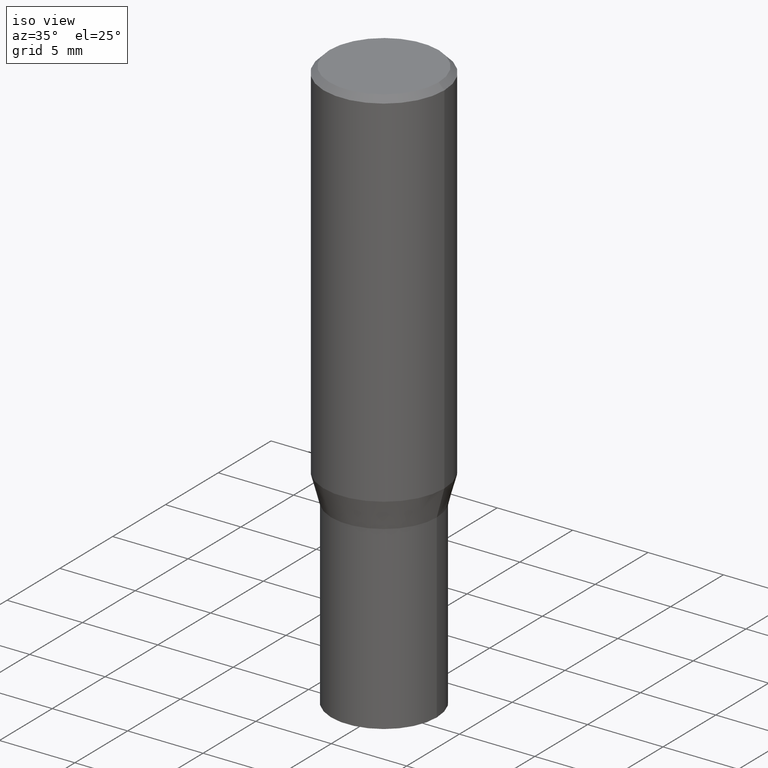
[diagram: clean part render]
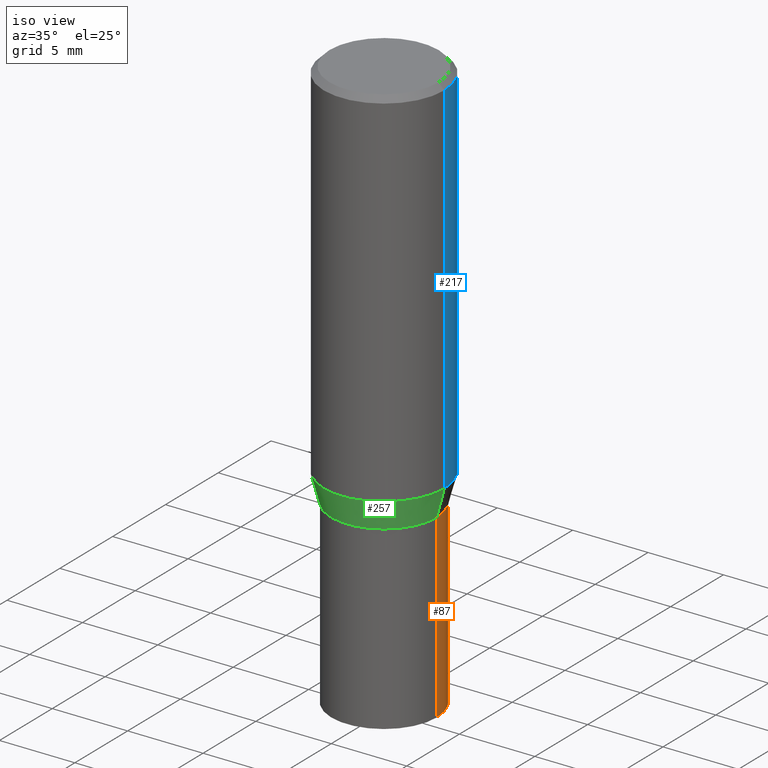
[diagram: same view with three faces highlighted in distinct colors, each labeled with its STEP entity id]
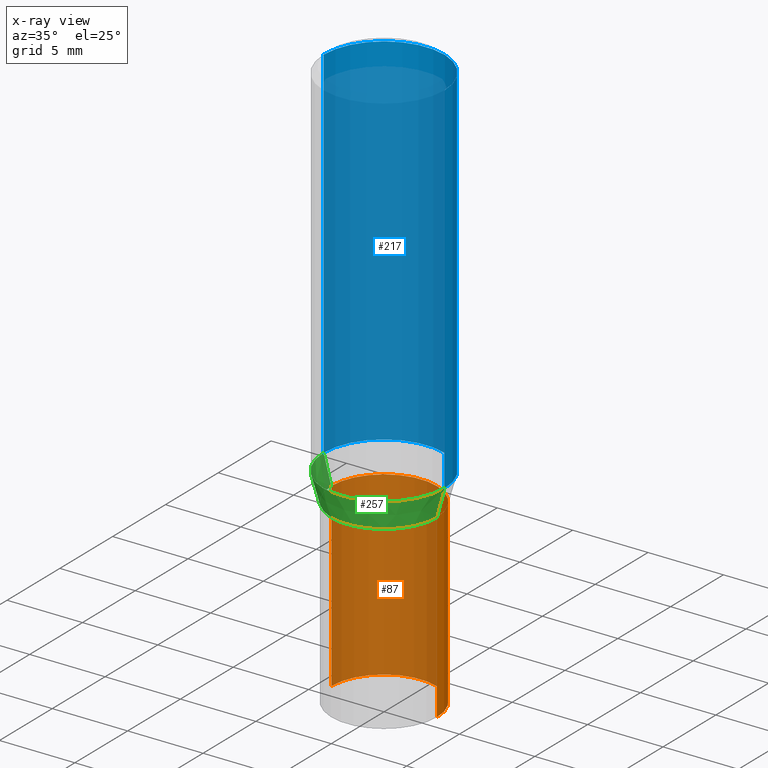
[diagram: x-ray of the same camera — body ghosted, the three highlighted faces saturated]
A machine part, iso view with three faces highlighted in distinct colors.
The next image is the same camera in x-ray (body ghosted, the three faces saturated) — at least one of them is partly hidden behind the body in this view.
Their STEP definitions:

[orange] entity #87 — the highlighted cylindrical surface (partial cylindrical patch) has radius 3.5001 mm, axis along (-0, 0, 1).
#26 = EDGE_CURVE ( 'NONE', #440, #168, #345, .T. ) ;
#33 = CARTESIAN_POINT ( 'NONE',  ( 0.000000000000000000, 0.000000000000000000, 0.000000000000000000 ) ) ;
#44 = LINE ( 'NONE', #121, #336 ) ;
#63 = AXIS2_PLACEMENT_3D ( 'NONE', #33, #355, #459 ) ;
#81 = DIRECTION ( 'NONE',  ( 1.000000000000000000, -6.982962677686265922E-15, 0.000000000000000000 ) ) ;
#87 = ADVANCED_FACE ( 'NONE', ( #166 ), #394, .T. ) ;
#88 = DIRECTION ( 'NONE',  ( -2.445468806185136597E-29, 3.491481338843145583E-15, 1.000000000000000000 ) ) ;
#116 = CARTESIAN_POINT ( 'NONE',  ( 0.1378000000000000058, -6.199474265249886443E-15, -1.500000000000000222 ) ) ;
#118 = AXIS2_PLACEMENT_3D ( 'NONE', #302, #120, #431 ) ;
#120 = DIRECTION ( 'NONE',  ( -2.445468806185136597E-29, 3.491481338843145583E-15, 1.000000000000000000 ) ) ;
#121 = CARTESIAN_POINT ( 'NONE',  ( -0.1378000000000000058, 9.791278898774180975E-16, -6.778292554371260034E-30 ) ) ;
#139 = ORIENTED_EDGE ( 'NONE', *, *, #432, .T. ) ;
#166 = FACE_OUTER_BOUND ( 'NONE', #420, .T. ) ;
#168 = VERTEX_POINT ( 'NONE', #285 ) ;
#188 = CIRCLE ( 'NONE', #260, 0.1378000000000000058 ) ;
#192 = CARTESIAN_POINT ( 'NONE',  ( 0.1378000000000000058, -9.622522569851676742E-16, 6.719371597046799937E-30 ) ) ;
#236 = VERTEX_POINT ( 'NONE', #395 ) ;
#260 = AXIS2_PLACEMENT_3D ( 'NONE', #304, #88, #81 ) ;
#277 = ORIENTED_EDGE ( 'NONE', *, *, #453, .F. ) ;
#285 = CARTESIAN_POINT ( 'NONE',  ( 0.1378000000000000058, -4.550098480780384395E-15, -1.027600000000000069 ) ) ;
#302 = CARTESIAN_POINT ( 'NONE',  ( 3.668203209277704895E-29, -5.237222008264718177E-15, -1.500000000000000222 ) ) ;
#304 = CARTESIAN_POINT ( 'NONE',  ( 2.512963745235846570E-29, -3.587846223795216918E-15, -1.027600000000000069 ) ) ;
#336 = VECTOR ( 'NONE', #427, 39.37007874015748143 ) ;
#341 = DIRECTION ( 'NONE',  ( -2.445468806185136877E-29, 3.491481338843145188E-15, 1.000000000000000000 ) ) ;
#345 = LINE ( 'NONE', #192, #433 ) ;
#355 = DIRECTION ( 'NONE',  ( -2.445468806185136597E-29, 3.491481338843145583E-15, 1.000000000000000000 ) ) ;
#390 = ORIENTED_EDGE ( 'NONE', *, *, #26, .F. ) ;
#394 = CYLINDRICAL_SURFACE ( 'NONE', #63, 0.1378000000000000058 ) ;
#395 = CARTESIAN_POINT ( 'NONE',  ( -0.1378000000000000058, -3.433406226152549647E-15, -1.500000000000000222 ) ) ;
#399 = CARTESIAN_POINT ( 'NONE',  ( -0.1378000000000000058, -3.433406226152549647E-15, -1.027600000000000069 ) ) ;
#411 = CIRCLE ( 'NONE', #118, 0.1378000000000000058 ) ;
#416 = ORIENTED_EDGE ( 'NONE', *, *, #428, .T. ) ;
#420 = EDGE_LOOP ( 'NONE', ( #416, #139, #277, #390 ) ) ;
#427 = DIRECTION ( 'NONE',  ( -2.445468806185136877E-29, 3.491481338843145188E-15, 1.000000000000000000 ) ) ;
#428 = EDGE_CURVE ( 'NONE', #440, #236, #411, .T. ) ;
#431 = DIRECTION ( 'NONE',  ( 1.000000000000000000, -6.982962677686265922E-15, 0.000000000000000000 ) ) ;
#432 = EDGE_CURVE ( 'NONE', #236, #452, #44, .T. ) ;
#433 = VECTOR ( 'NONE', #341, 39.37007874015748143 ) ;
#440 = VERTEX_POINT ( 'NONE', #116 ) ;
#452 = VERTEX_POINT ( 'NONE', #399 ) ;
#453 = EDGE_CURVE ( 'NONE', #168, #452, #188, .T. ) ;
#459 = DIRECTION ( 'NONE',  ( 1.000000000000000000, -6.982962677686267499E-15, 4.876176775795935793E-29 ) ) ;

[blue] entity #217 — the highlighted cylindrical surface (partial cylindrical patch) has radius 4.0005 mm, axis along (-0, 0, 1).
#4 = AXIS2_PLACEMENT_3D ( 'NONE', #426, #77, #327 ) ;
#5 = DIRECTION ( 'NONE',  ( -2.445468806185136877E-29, 3.491481338843145188E-15, 1.000000000000000000 ) ) ;
#25 = DIRECTION ( 'NONE',  ( -2.445468806185136597E-29, 3.491481338843145583E-15, 1.000000000000000000 ) ) ;
#37 = CARTESIAN_POINT ( 'NONE',  ( 2.334147640248070557E-29, -3.332544217051005165E-15, -0.9544785990908941642 ) ) ;
#47 = EDGE_CURVE ( 'NONE', #94, #200, #167, .T. ) ;
#54 = VECTOR ( 'NONE', #5, 39.37007874015748143 ) ;
#67 = ORIENTED_EDGE ( 'NONE', *, *, #248, .T. ) ;
#74 = CARTESIAN_POINT ( 'NONE',  ( 0.1575000000000000011, -4.432360838786593040E-15, -0.9544785990908941642 ) ) ;
#76 = DIRECTION ( 'NONE',  ( 1.000000000000000000, -6.982962677686265922E-15, 0.000000000000000000 ) ) ;
#77 = DIRECTION ( 'NONE',  ( -2.445468806185136597E-29, 3.491481338843145583E-15, 1.000000000000000000 ) ) ;
#85 = CARTESIAN_POINT ( 'NONE',  ( -0.1575000000000000011, -2.213439408228846773E-15, -0.9544785990908941642 ) ) ;
#94 = VERTEX_POINT ( 'NONE', #85 ) ;
#101 = VERTEX_POINT ( 'NONE', #296 ) ;
#112 = DIRECTION ( 'NONE',  ( -2.445468806185136597E-29, 3.491481338843145583E-15, 1.000000000000000000 ) ) ;
#167 = LINE ( 'NONE', #263, #54 ) ;
#186 = CARTESIAN_POINT ( 'NONE',  ( 0.1575000000000000011, -1.099816621735586889E-15, 7.679978421878598033E-30 ) ) ;
#187 = VECTOR ( 'NONE', #270, 39.37007874015748143 ) ;
#193 = CIRCLE ( 'NONE', #205, 0.1575000000000000011 ) ;
#200 = VERTEX_POINT ( 'NONE', #326 ) ;
#204 = VERTEX_POINT ( 'NONE', #74 ) ;
#205 = AXIS2_PLACEMENT_3D ( 'NONE', #462, #112, #76 ) ;
#217 = ADVANCED_FACE ( 'NONE', ( #354 ), #295, .T. ) ;
#223 = EDGE_CURVE ( 'NONE', #101, #200, #193, .T. ) ;
#248 = EDGE_CURVE ( 'NONE', #204, #94, #250, .T. ) ;
#250 = CIRCLE ( 'NONE', #463, 0.1575000000000000011 ) ;
#262 = EDGE_CURVE ( 'NONE', #204, #101, #266, .T. ) ;
#263 = CARTESIAN_POINT ( 'NONE',  ( -0.1575000000000000011, 1.119104808822157801E-15, -7.747322767151475583E-30 ) ) ;
#266 = LINE ( 'NONE', #186, #187 ) ;
#270 = DIRECTION ( 'NONE',  ( -2.445468806185136877E-29, 3.491481338843145188E-15, 1.000000000000000000 ) ) ;
#295 = CYLINDRICAL_SURFACE ( 'NONE', #4, 0.1575000000000000011 ) ;
#296 = CARTESIAN_POINT ( 'NONE',  ( 0.1575000000000000011, -1.152188841818234165E-15, -0.01499999999999999944 ) ) ;
#326 = CARTESIAN_POINT ( 'NONE',  ( -0.1575000000000000011, -5.733534097446686172E-16, -0.01499999999999999944 ) ) ;
#327 = DIRECTION ( 'NONE',  ( 1.000000000000000000, -6.982962677686265922E-15, 4.876176775795935232E-29 ) ) ;
#331 = DIRECTION ( 'NONE',  ( 1.000000000000000000, -6.982962677686264344E-15, 0.000000000000000000 ) ) ;
#342 = ORIENTED_EDGE ( 'NONE', *, *, #262, .F. ) ;
#352 = ORIENTED_EDGE ( 'NONE', *, *, #47, .T. ) ;
#354 = FACE_OUTER_BOUND ( 'NONE', #376, .T. ) ;
#376 = EDGE_LOOP ( 'NONE', ( #67, #352, #465, #342 ) ) ;
#426 = CARTESIAN_POINT ( 'NONE',  ( 0.000000000000000000, 0.000000000000000000, 0.000000000000000000 ) ) ;
#462 = CARTESIAN_POINT ( 'NONE',  ( 3.668203209277705088E-31, -5.237222008264718399E-17, -0.01499999999999999944 ) ) ;
#463 = AXIS2_PLACEMENT_3D ( 'NONE', #37, #25, #331 ) ;
#465 = ORIENTED_EDGE ( 'NONE', *, *, #223, .F. ) ;

[green] entity #257 — the highlighted conical surface has half-angle 15 deg.
#28 = CIRCLE ( 'NONE', #146, 0.1575000000000000011 ) ;
#48 = DIRECTION ( 'NONE',  ( 1.000000000000000000, -6.982962677686270655E-15, 0.000000000000000000 ) ) ;
#74 = CARTESIAN_POINT ( 'NONE',  ( 0.1575000000000000011, -4.432360838786593040E-15, -0.9544785990908941642 ) ) ;
#85 = CARTESIAN_POINT ( 'NONE',  ( -0.1575000000000000011, -2.213439408228846773E-15, -0.9544785990908941642 ) ) ;
#94 = VERTEX_POINT ( 'NONE', #85 ) ;
#113 = ORIENTED_EDGE ( 'NONE', *, *, #131, .T. ) ;
#114 = CARTESIAN_POINT ( 'NONE',  ( 2.513941932758320587E-29, -3.589242816330753332E-15, -1.028000000000000025 ) ) ;
#123 = AXIS2_PLACEMENT_3D ( 'NONE', #337, #430, #48 ) ;
#131 = EDGE_CURVE ( 'NONE', #449, #454, #403, .T. ) ;
#137 = CONICAL_SURFACE ( 'NONE', #123, 0.1378000000000002001, 0.2617993877991500740 ) ;
#141 = EDGE_CURVE ( 'NONE', #454, #204, #425, .T. ) ;
#143 = ORIENTED_EDGE ( 'NONE', *, *, #214, .F. ) ;
#146 = AXIS2_PLACEMENT_3D ( 'NONE', #361, #359, #215 ) ;
#148 = DIRECTION ( 'NONE',  ( -0.2588190451025213501, 5.211531920934551042E-15, 0.9659258262890682012 ) ) ;
#170 = EDGE_CURVE ( 'NONE', #449, #94, #213, .T. ) ;
#190 = CARTESIAN_POINT ( 'NONE',  ( -0.1378000000000002001, -2.411777167341090313E-15, -1.028000000000000025 ) ) ;
#204 = VERTEX_POINT ( 'NONE', #74 ) ;
#213 = LINE ( 'NONE', #358, #291 ) ;
#214 = EDGE_CURVE ( 'NONE', #94, #204, #28, .T. ) ;
#215 = DIRECTION ( 'NONE',  ( 1.000000000000000000, -6.982962677686264344E-15, 0.000000000000000000 ) ) ;
#219 = AXIS2_PLACEMENT_3D ( 'NONE', #114, #293, #396 ) ;
#249 = CARTESIAN_POINT ( 'NONE',  ( 0.1378000000000002001, -4.551495073315923176E-15, -1.028000000000000025 ) ) ;
#257 = ADVANCED_FACE ( 'NONE', ( #455 ), #137, .T. ) ;
#287 = ORIENTED_EDGE ( 'NONE', *, *, #141, .T. ) ;
#291 = VECTOR ( 'NONE', #148, 39.37007874015747433 ) ;
#293 = DIRECTION ( 'NONE',  ( -2.445468806185136597E-29, 3.491481338843145583E-15, 1.000000000000000000 ) ) ;
#298 = CARTESIAN_POINT ( 'NONE',  ( 0.1378000000000002001, -4.551495073315923176E-15, -1.028000000000000025 ) ) ;
#337 = CARTESIAN_POINT ( 'NONE',  ( 2.513941932758320587E-29, -3.589242816330753332E-15, -1.028000000000000025 ) ) ;
#358 = CARTESIAN_POINT ( 'NONE',  ( -0.1378000000000002001, -2.610114926453333854E-15, -1.028000000000000025 ) ) ;
#359 = DIRECTION ( 'NONE',  ( -2.445468806185136597E-29, 3.491481338843145583E-15, 1.000000000000000000 ) ) ;
#361 = CARTESIAN_POINT ( 'NONE',  ( 2.334147640248070557E-29, -3.332544217051005165E-15, -0.9544785990908941642 ) ) ;
#388 = EDGE_LOOP ( 'NONE', ( #457, #113, #287, #143 ) ) ;
#396 = DIRECTION ( 'NONE',  ( 1.000000000000000000, -6.982962677686270655E-15, 0.000000000000000000 ) ) ;
#403 = CIRCLE ( 'NONE', #219, 0.1378000000000002001 ) ;
#409 = VECTOR ( 'NONE', #419, 39.37007874015747433 ) ;
#419 = DIRECTION ( 'NONE',  ( 0.2588190451025213501, 1.565188264969621968E-15, 0.9659258262890682012 ) ) ;
#425 = LINE ( 'NONE', #249, #409 ) ;
#430 = DIRECTION ( 'NONE',  ( -2.445468806185136597E-29, 3.491481338843145583E-15, 1.000000000000000000 ) ) ;
#449 = VERTEX_POINT ( 'NONE', #190 ) ;
#454 = VERTEX_POINT ( 'NONE', #298 ) ;
#455 = FACE_OUTER_BOUND ( 'NONE', #388, .T. ) ;
#457 = ORIENTED_EDGE ( 'NONE', *, *, #170, .F. ) ;